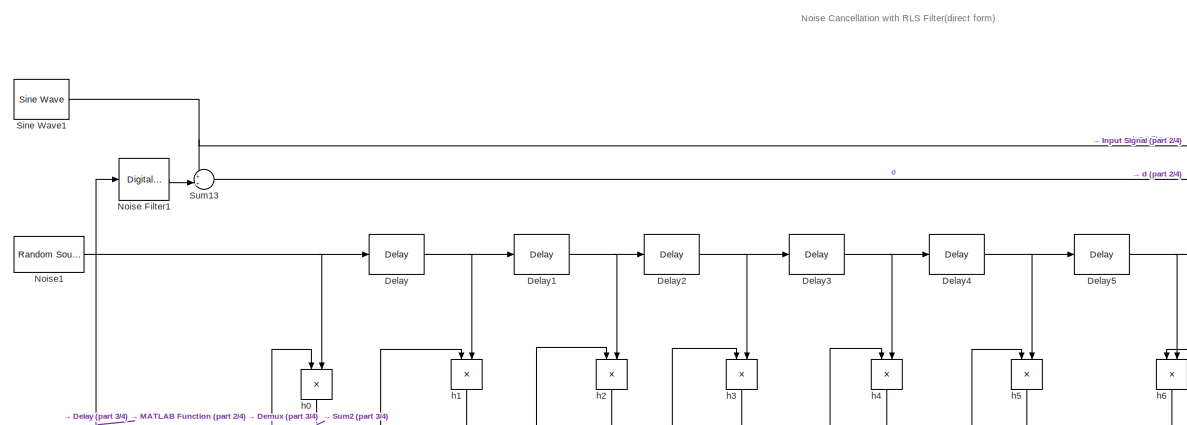
[diagram: root canvas - part 1/4, top center region]
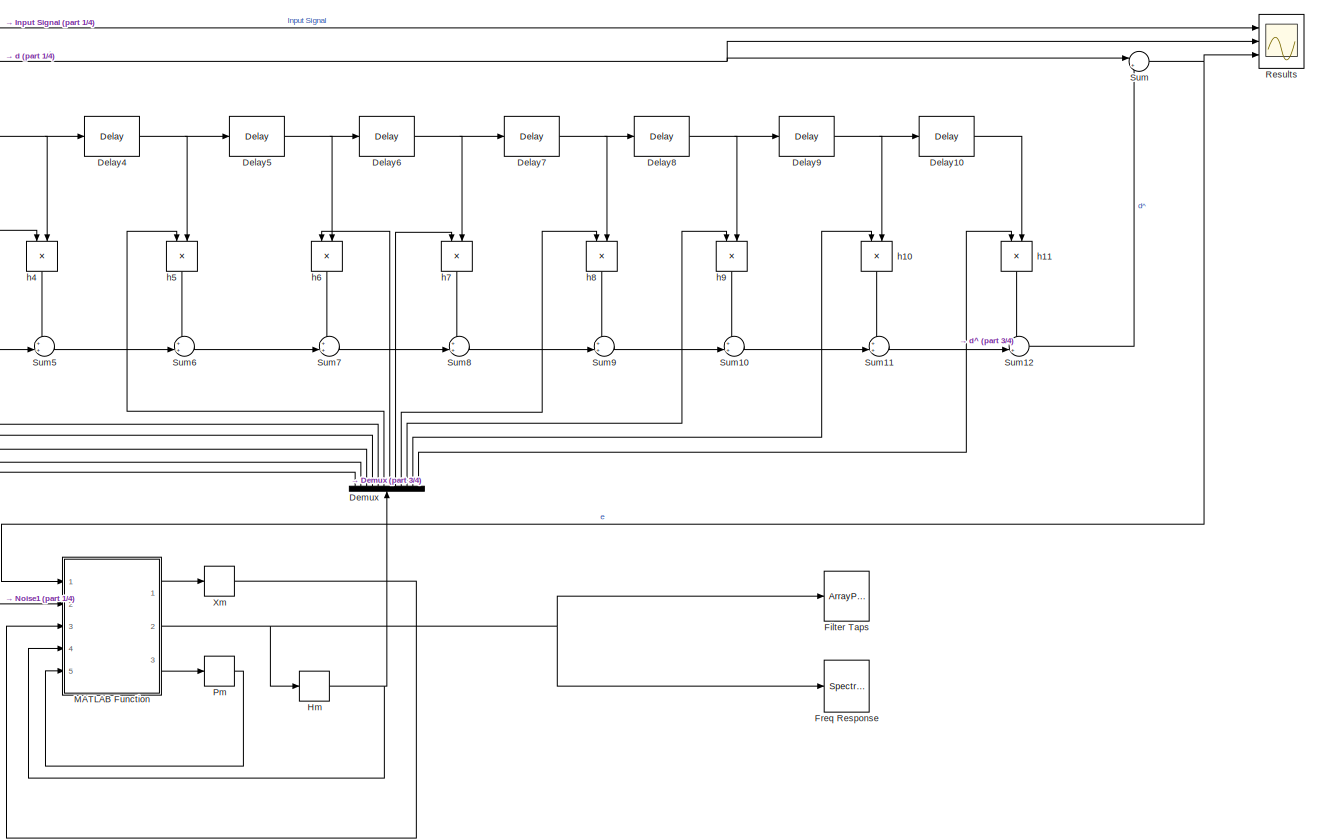
[diagram: root canvas - part 2/4, right side, full height]
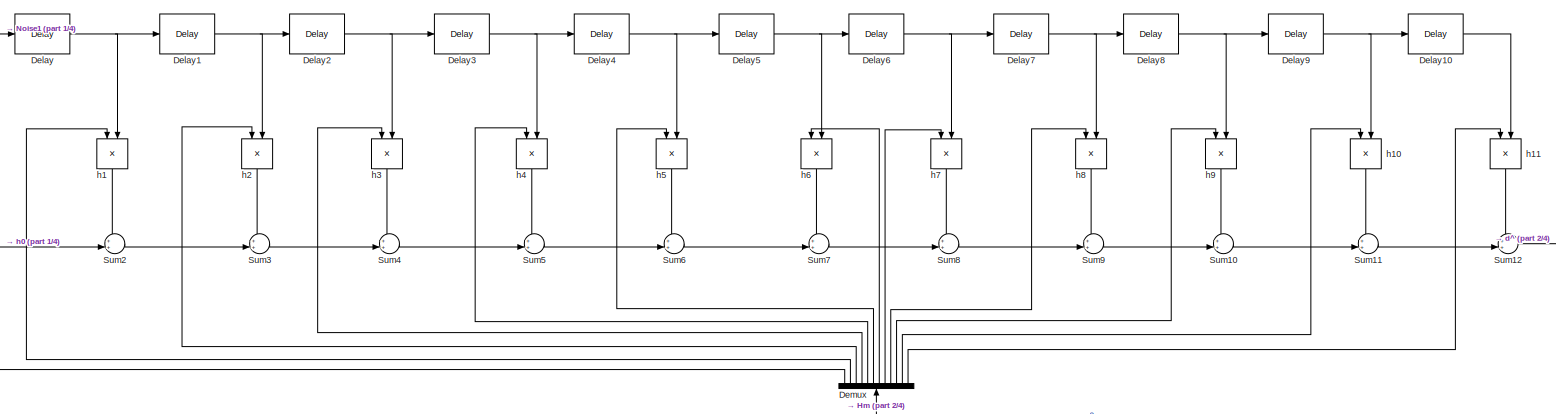
[diagram: root canvas - part 3/4, central region]
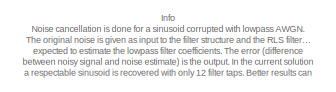
[diagram: root canvas - part 4/4, bottom left region]
MODEL slx_b61317a789d5
KIND model
CONFIG AbsTol = auto
CONFIG FixedStep = auto
CONFIG MaxStep = auto
CONFIG MinStep = auto
CONFIG RelTol = 1e-3
CONFIG SampleTimeConstraint = Unconstrained
CONFIG Solver = VariableStepAuto
CONFIG SolverMode = Auto
CONFIG SolverName = VariableStepAuto
CONFIG StartTime = 0.0
CONFIG StopTime = inf
BLOCK [Delay] Delay
  DelayLength = 1
  InputPortMap = u0
  InputProcessing = Columns as channels (frame based)
  Ports = [1, 1]
BLOCK [Delay] Delay1
  DelayLength = 1
  InputPortMap = u0
  InputProcessing = Columns as channels (frame based)
  Ports = [1, 1]
BLOCK [Delay] Delay10
  DelayLength = 1
  InputPortMap = u0
  InputProcessing = Columns as channels (frame based)
  Ports = [1, 1]
BLOCK [Delay] Delay2
  DelayLength = 1
  InputPortMap = u0
  InputProcessing = Columns as channels (frame based)
  Ports = [1, 1]
BLOCK [Delay] Delay3
  DelayLength = 1
  InputPortMap = u0
  InputProcessing = Columns as channels (frame based)
  Ports = [1, 1]
BLOCK [Delay] Delay4
  DelayLength = 1
  InputPortMap = u0
  InputProcessing = Columns as channels (frame based)
  Ports = [1, 1]
BLOCK [Delay] Delay5
  DelayLength = 1
  InputPortMap = u0
  InputProcessing = Columns as channels (frame based)
  Ports = [1, 1]
BLOCK [Delay] Delay6
  DelayLength = 1
  InputPortMap = u0
  InputProcessing = Columns as channels (frame based)
  Ports = [1, 1]
BLOCK [Delay] Delay7
  DelayLength = 1
  InputPortMap = u0
  InputProcessing = Columns as channels (frame based)
  Ports = [1, 1]
BLOCK [Delay] Delay8
  DelayLength = 1
  InputPortMap = u0
  InputProcessing = Columns as channels (frame based)
  Ports = [1, 1]
BLOCK [Delay] Delay9
  DelayLength = 1
  InputPortMap = u0
  InputProcessing = Columns as channels (frame based)
  Ports = [1, 1]
BLOCK [Demux] Demux
  DisplayOption = bar
  Outputs = 12
  Ports = [1, 12]
BLOCK [ArrayPlot] Filter Taps
  NumInputPorts = 1
  Ports = [1]
  ScopeSpecificationString = dsp.scopes.ArrayPlotBlockSpecification('CurrentConfiguration', extmgr.ConfigurationSet(extmgr.Configuration('Core','General UI',true),extmgr.Configuration('Core','Source UI',true),extmgr.Configuration('Sources','WiredSimulink',true),extmgr.Configuration('Sources','Simulink',false),extmgr.Configuration('Sources','File',false),extmgr.Configuration('Sources','Workspace',false),extmgr.Configuration('S...<+2787ch>
BLOCK [SpectrumAnalyzer] Freq Response
  NumInputPorts = 1
  Ports = [1]
  ScopeSpecificationString = spbscopes.SpectrumAnalyzerBlockCfg('CurrentConfiguration', extmgr.ConfigurationSet(extmgr.Configuration('Core','General UI',true),extmgr.Configuration('Core','Source UI',true),extmgr.Configuration('Sources','WiredSimulink',true),extmgr.Configuration('Visuals','Spectrum',true,'AxesProperties',struct('Color',[0 0 0],'XColor',[0.686274509804 0.686274509804 0.686274509804],'YColor',[0.686274509804 0.6...<+1377ch>
BLOCK [Memory] Hm
  InheritSampleTime = on
  X0 = zeros(12, 1)
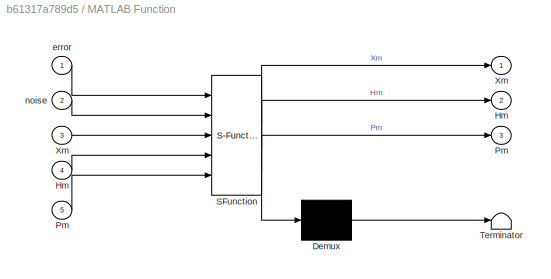
BLOCK [SubSystem] MATLAB Function
  ErrorFcn = Stateflow.Translate.translate
  PermitHierarchicalResolution = ExplicitOnly
  Ports = [5, 3]
  RequestExecContextInheritance = off
  SFBlockType = MATLAB Function
  TreatAsAtomicUnit = on
  Variant = off
BLOCK [Demux] MATLAB Function/ Demux 
  Outputs = 1
  Ports = [1, 1]
BLOCK [S-Function] MATLAB Function/ SFunction 
  EnableBusSupport = on
  FunctionName = sf_sfun
  PortCounts = [5 4]
  Ports = [5, 4]
  SFunctionDeploymentMode = off
  Tag = Stateflow S-Function rls_filt_direct_form_simulink 2
BLOCK [Terminator] MATLAB Function/ Terminator 
BLOCK [Outport] MATLAB Function/Hm
  IconDisplay = Port number
  Port = 2
BLOCK [Inport] MATLAB Function/Hm 
  IconDisplay = Port number
  Port = 4
BLOCK [Outport] MATLAB Function/Pm
  IconDisplay = Port number
  Port = 3
BLOCK [Inport] MATLAB Function/Pm 
  IconDisplay = Port number
  Port = 5
BLOCK [Outport] MATLAB Function/Xm
  IconDisplay = Port number
BLOCK [Inport] MATLAB Function/Xm 
  IconDisplay = Port number
  Port = 3
BLOCK [Inport] MATLAB Function/error
  IconDisplay = Port number
BLOCK [Inport] MATLAB Function/noise
  IconDisplay = Port number
  Port = 2
BLOCK [Reference] Noise Filter1  REF=dsparch4/Digital
Filter Design
  Ports = [1, 1]
  SourceBlock = dsparch4/Digital\nFilter Design
  SourceType = Digital Filter Design
  UserDataPersistent = on
BLOCK [Reference] Noise1  REF=dspsrcs4/Random
Source
  Ports = [0, 1]
  SourceBlock = dspsrcs4/Random\nSource
  SourceType = Random Source
BLOCK [Memory] Pm
  InheritSampleTime = on
  X0 = 0.01*eye(12)
BLOCK [Scope] Results
  DefaultConfigurationName = spbscopes.TimeScopeBlockCfg
  NumInputPorts = 3
  Ports = [3]
  ScopeSpecificationString = spbscopes.TimeScopeBlockCfg('CurrentConfiguration', extmgr.ConfigurationSet(extmgr.Configuration('Core','General UI',true),extmgr.Configuration('Core','Source UI',true),extmgr.Configuration('Sources','WiredSimulink',true),extmgr.Configuration('Visuals','Time Domain',true,'DisplayLayoutDimensions',[3 1],'DisplayPropertyDefaults',struct('AxesColor',[0 0 0],'AxesTickColor',[0.686274509803922 0.686274...<+2618ch>
BLOCK [Reference] Sine Wave1  REF=dspsrcs4/Sine Wave
  Ports = [0, 1]
  SourceBlock = dspsrcs4/Sine Wave
  SourceType = Sine Wave
BLOCK [Sum] Sum
  IconShape = round
  InputSameDT = off
  Inputs = |+-
  OutDataTypeStr = Inherit: Inherit via internal rule
  Ports = [2, 1]
  SaturateOnIntegerOverflow = off
BLOCK [Sum] Sum10
  IconShape = round
  InputSameDT = off
  Inputs = ++|
  OutDataTypeStr = Inherit: Inherit via internal rule
  Ports = [2, 1]
  SaturateOnIntegerOverflow = off
BLOCK [Sum] Sum11
  IconShape = round
  InputSameDT = off
  Inputs = ++|
  OutDataTypeStr = Inherit: Inherit via internal rule
  Ports = [2, 1]
  SaturateOnIntegerOverflow = off
BLOCK [Sum] Sum12
  IconShape = round
  InputSameDT = off
  Inputs = ++|
  OutDataTypeStr = Inherit: Inherit via internal rule
  Ports = [2, 1]
  SaturateOnIntegerOverflow = off
BLOCK [Sum] Sum13
  IconShape = round
  Inputs = ++|
  Ports = [2, 1]
BLOCK [Sum] Sum2
  IconShape = round
  InputSameDT = off
  Inputs = ++|
  OutDataTypeStr = Inherit: Inherit via internal rule
  Ports = [2, 1]
  SaturateOnIntegerOverflow = off
BLOCK [Sum] Sum3
  IconShape = round
  InputSameDT = off
  Inputs = ++|
  OutDataTypeStr = Inherit: Inherit via internal rule
  Ports = [2, 1]
  SaturateOnIntegerOverflow = off
BLOCK [Sum] Sum4
  IconShape = round
  InputSameDT = off
  Inputs = ++|
  OutDataTypeStr = Inherit: Inherit via internal rule
  Ports = [2, 1]
  SaturateOnIntegerOverflow = off
BLOCK [Sum] Sum5
  IconShape = round
  InputSameDT = off
  Inputs = ++|
  OutDataTypeStr = Inherit: Inherit via internal rule
  Ports = [2, 1]
  SaturateOnIntegerOverflow = off
BLOCK [Sum] Sum6
  IconShape = round
  InputSameDT = off
  Inputs = ++|
  OutDataTypeStr = Inherit: Inherit via internal rule
  Ports = [2, 1]
  SaturateOnIntegerOverflow = off
BLOCK [Sum] Sum7
  IconShape = round
  InputSameDT = off
  Inputs = ++|
  OutDataTypeStr = Inherit: Inherit via internal rule
  Ports = [2, 1]
  SaturateOnIntegerOverflow = off
BLOCK [Sum] Sum8
  IconShape = round
  InputSameDT = off
  Inputs = ++|
  OutDataTypeStr = Inherit: Inherit via internal rule
  Ports = [2, 1]
  SaturateOnIntegerOverflow = off
BLOCK [Sum] Sum9
  IconShape = round
  InputSameDT = off
  Inputs = ++|
  OutDataTypeStr = Inherit: Inherit via internal rule
  Ports = [2, 1]
  SaturateOnIntegerOverflow = off
BLOCK [Memory] Xm
  InheritSampleTime = on
  X0 = zeros(12, 1)
BLOCK [Product] h0
  InputSameDT = off
  OutDataTypeStr = Inherit: Inherit via internal rule
  Ports = [2, 1]
  RndMeth = Floor
  SaturateOnIntegerOverflow = off
BLOCK [Product] h1
  InputSameDT = off
  OutDataTypeStr = Inherit: Inherit via internal rule
  Ports = [2, 1]
  RndMeth = Floor
  SaturateOnIntegerOverflow = off
BLOCK [Product] h10
  InputSameDT = off
  OutDataTypeStr = Inherit: Inherit via internal rule
  Ports = [2, 1]
  RndMeth = Floor
  SaturateOnIntegerOverflow = off
BLOCK [Product] h11
  InputSameDT = off
  OutDataTypeStr = Inherit: Inherit via internal rule
  Ports = [2, 1]
  RndMeth = Floor
  SaturateOnIntegerOverflow = off
BLOCK [Product] h2
  InputSameDT = off
  OutDataTypeStr = Inherit: Inherit via internal rule
  Ports = [2, 1]
  RndMeth = Floor
  SaturateOnIntegerOverflow = off
BLOCK [Product] h3
  InputSameDT = off
  OutDataTypeStr = Inherit: Inherit via internal rule
  Ports = [2, 1]
  RndMeth = Floor
  SaturateOnIntegerOverflow = off
BLOCK [Product] h4
  InputSameDT = off
  OutDataTypeStr = Inherit: Inherit via internal rule
  Ports = [2, 1]
  RndMeth = Floor
  SaturateOnIntegerOverflow = off
BLOCK [Product] h5
  InputSameDT = off
  OutDataTypeStr = Inherit: Inherit via internal rule
  Ports = [2, 1]
  RndMeth = Floor
  SaturateOnIntegerOverflow = off
BLOCK [Product] h6
  InputSameDT = off
  OutDataTypeStr = Inherit: Inherit via internal rule
  Ports = [2, 1]
  RndMeth = Floor
  SaturateOnIntegerOverflow = off
BLOCK [Product] h7
  InputSameDT = off
  OutDataTypeStr = Inherit: Inherit via internal rule
  Ports = [2, 1]
  RndMeth = Floor
  SaturateOnIntegerOverflow = off
BLOCK [Product] h8
  InputSameDT = off
  OutDataTypeStr = Inherit: Inherit via internal rule
  Ports = [2, 1]
  RndMeth = Floor
  SaturateOnIntegerOverflow = off
BLOCK [Product] h9
  InputSameDT = off
  OutDataTypeStr = Inherit: Inherit via internal rule
  Ports = [2, 1]
  RndMeth = Floor
  SaturateOnIntegerOverflow = off
ANNOTATION (root): Info Noise cancellation is done for a sinusoid corrupted with lowpass AWGN. The original noise is given as input to the filter structure and the RLS filter is expected to estimate the lowpass filter coefficients. The error (difference between noisy signal and noise estimate) is the output. In the current solution a respectable sinusoid is recovered with only 12 filter taps. Better results can be o...<+156ch>
ANNOTATION (root): Noise Cancellation with RLS Filter(direct form)
LINE Delay10:1 -> h11:2
NET Delay1:1 -> Delay2:1, h2:2
NET Delay2:1 -> Delay3:1, h3:2
NET Delay3:1 -> Delay4:1, h4:2
NET Delay4:1 -> Delay5:1, h5:2
NET Delay5:1 -> Delay6:1, h6:2
NET Delay6:1 -> Delay7:1, h7:2
NET Delay7:1 -> Delay8:1, h8:2
NET Delay8:1 -> Delay9:1, h9:2
NET Delay9:1 -> Delay10:1, h10:2
NET Delay:1 -> Delay1:1, h1:2
LINE Demux:1 -> h0:1
LINE Demux:10 -> h9:1
LINE Demux:11 -> h10:1
LINE Demux:12 -> h11:1
LINE Demux:2 -> h1:1
LINE Demux:3 -> h2:1
LINE Demux:4 -> h3:1
LINE Demux:5 -> h4:1
LINE Demux:6 -> h5:1
LINE Demux:7 -> h6:1
LINE Demux:8 -> h7:1
LINE Demux:9 -> h8:1
NET Hm:1 -> Demux:1, MATLAB Function:4
LINE MATLAB Function:1 -> Xm:1
NET MATLAB Function:2 -> Filter Taps:1, Freq Response:1, Hm:1
LINE MATLAB Function:3 -> Pm:1
LINE Noise Filter1:1 -> Sum13:2
NET Noise1:1 -> Delay:1, MATLAB Function:2, Noise Filter1:1, h0:2
LINE Pm:1 -> MATLAB Function:5
NET Sine Wave1:1 -> Results:1, Sum13:1
LINE Sum10:1 -> Sum11:2
LINE Sum11:1 -> Sum12:2
LINE Sum12:1 -> Sum:2
NET Sum13:1 -> Results:2, Sum:1
LINE Sum2:1 -> Sum3:2
LINE Sum3:1 -> Sum4:2
LINE Sum4:1 -> Sum5:2
LINE Sum5:1 -> Sum6:2
LINE Sum6:1 -> Sum7:2
LINE Sum7:1 -> Sum8:2
LINE Sum8:1 -> Sum9:2
LINE Sum9:1 -> Sum10:2
NET Sum:1 -> MATLAB Function:1, Results:3
LINE Xm:1 -> MATLAB Function:3
LINE h0:1 -> Sum2:2
LINE h10:1 -> Sum11:1
LINE h11:1 -> Sum12:1
LINE h1:1 -> Sum2:1
LINE h2:1 -> Sum3:1
LINE h3:1 -> Sum4:1
LINE h4:1 -> Sum5:1
LINE h5:1 -> Sum6:1
LINE h6:1 -> Sum7:1
LINE h7:1 -> Sum8:1
LINE h8:1 -> Sum9:1
LINE h9:1 -> Sum10:1
note: NET lines group one-source signal fan-out (src -> all destinations, sorted); 1:1 wires keep LINE
CHART MATLAB Function states=1 transitions=1
  STATE_LABEL 'eML_blk_kernel()'
  STATE_LABEL 'SCRIPT:\nfunction [Xm, Hm, Pm] = rls_filt_funct(error, noise, Xm, Hm, Pm)\n%\n% Function for RLS filter coeffients computation\n%\n% error: difference between signal and estimated noise at time n\n% noise: original noise at time n\n% Xm(M, 1) : noise vector (window)\n% Hm(M, 1) : filter coefficients\n% Pm(M, M) : inverse correction matrix\n% \n\nM = 12;\nw = 0.999;\n\nXm = [noise; Xm(1:M-1)]; % calculate Xm(n) f...<+193ch>'
